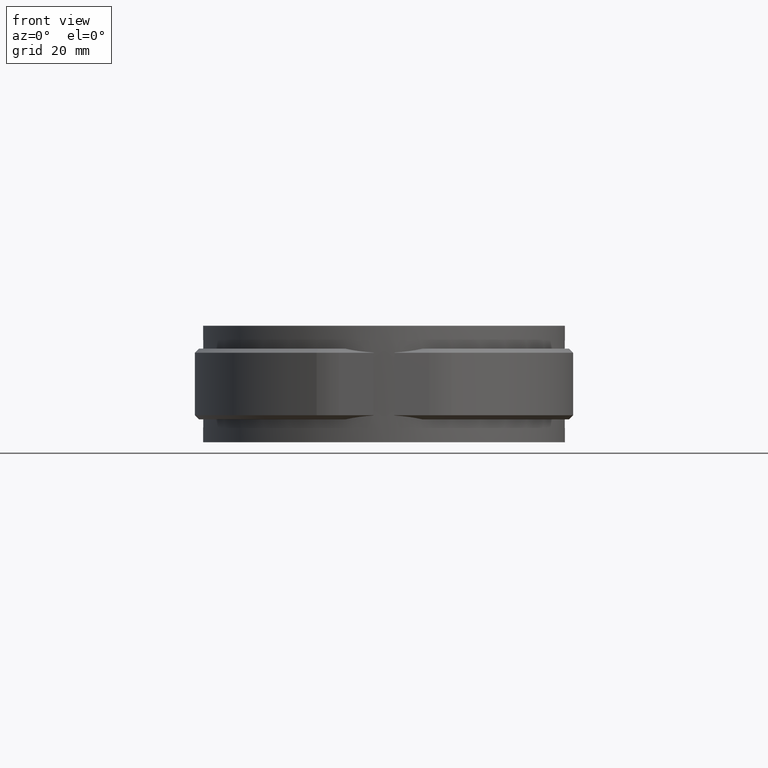
[diagram: clean part render]
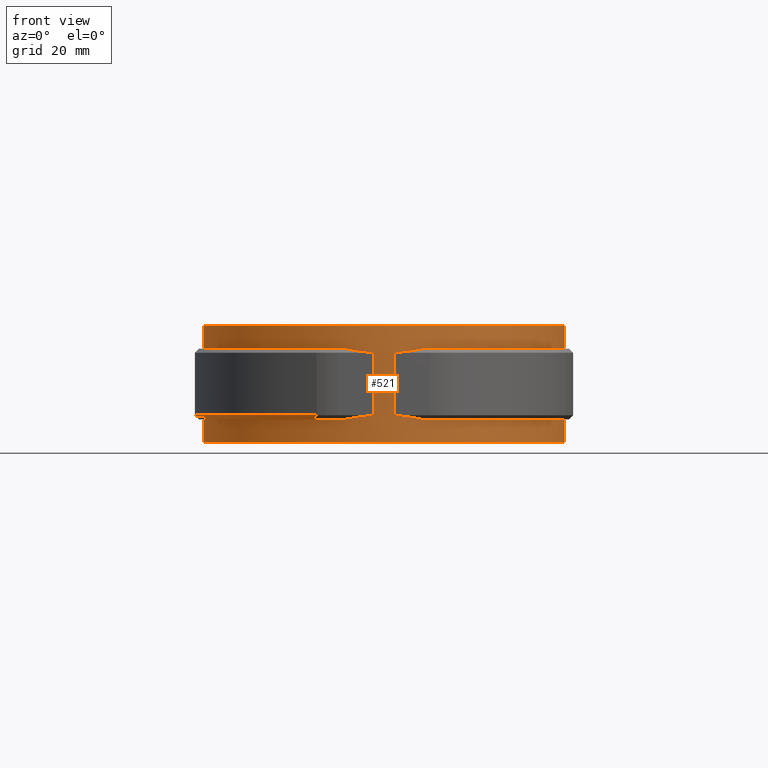
[diagram: same view with one face highlighted and labeled with its STEP entity id]
A machine part, front view. The second image highlights one B-rep face of the part: STEP entity #521.
In plain terms, the highlighted cylindrical surface (partial cylindrical patch) has radius 43.5 mm, axis along (0, 0, -1).
Its self-contained STEP definition (entity closure, byte-faithful):
#521 = ADVANCED_FACE( '', ( #950 ), #951, .T. );
#950 = FACE_OUTER_BOUND( '', #1980, .T. );
#951 = CYLINDRICAL_SURFACE( '', #1981, 43.5000000000000 );
#1980 = EDGE_LOOP( '', ( #4372, #4373, #4374, #4375, #4376, #4377, #4378, #4379, #4380, #4381, #4382, #4383, #4384, #4385, #4386, #4387 ) );
#1981 = AXIS2_PLACEMENT_3D( '', #4388, #4389, #4390 );
#4372 = ORIENTED_EDGE( '', *, *, #7445, .F. );
#4373 = ORIENTED_EDGE( '', *, *, #7451, .T. );
#4374 = ORIENTED_EDGE( '', *, *, #7452, .T. );
#4375 = ORIENTED_EDGE( '', *, *, #7453, .T. );
#4376 = ORIENTED_EDGE( '', *, *, #7454, .T. );
#4377 = ORIENTED_EDGE( '', *, *, #7436, .F. );
#4378 = ORIENTED_EDGE( '', *, *, #7455, .T. );
#4379 = ORIENTED_EDGE( '', *, *, #7456, .T. );
#4380 = ORIENTED_EDGE( '', *, *, #7457, .F. );
#4381 = ORIENTED_EDGE( '', *, *, #7458, .T. );
#4382 = ORIENTED_EDGE( '', *, *, #7459, .F. );
#4383 = ORIENTED_EDGE( '', *, *, #7430, .F. );
#4384 = ORIENTED_EDGE( '', *, *, #7460, .F. );
#4385 = ORIENTED_EDGE( '', *, *, #7461, .T. );
#4386 = ORIENTED_EDGE( '', *, *, #7462, .F. );
#4387 = ORIENTED_EDGE( '', *, *, #7449, .T. );
#4388 = CARTESIAN_POINT( '', ( 0.000000000000000, 0.000000000000000, -14.0000000000000 ) );
#4389 = DIRECTION( '', ( 0.000000000000000, 0.000000000000000, -1.00000000000000 ) );
#4390 = DIRECTION( '', ( -1.00000000000000, 6.07153216591882E-017, 0.000000000000000 ) );
#7430 = EDGE_CURVE( '', #8535, #8537, #8538, .T. );
#7436 = EDGE_CURVE( '', #8547, #8549, #8550, .T. );
#7445 = EDGE_CURVE( '', #8563, #8565, #8566, .F. );
#7449 = EDGE_CURVE( '', #8572, #8565, #8573, .F. );
#7451 = EDGE_CURVE( '', #8563, #8575, #8576, .T. );
#7452 = EDGE_CURVE( '', #8575, #8577, #8578, .T. );
#7453 = EDGE_CURVE( '', #8577, #8579, #8580, .T. );
#7454 = EDGE_CURVE( '', #8579, #8549, #8581, .T. );
#7455 = EDGE_CURVE( '', #8547, #8582, #8583, .T. );
#7456 = EDGE_CURVE( '', #8582, #8584, #8585, .T. );
#7457 = EDGE_CURVE( '', #8586, #8584, #8587, .T. );
#7458 = EDGE_CURVE( '', #8586, #8588, #8589, .F. );
#7459 = EDGE_CURVE( '', #8537, #8588, #8590, .T. );
#7460 = EDGE_CURVE( '', #8591, #8535, #8592, .T. );
#7461 = EDGE_CURVE( '', #8591, #8593, #8594, .T. );
#7462 = EDGE_CURVE( '', #8572, #8593, #8595, .T. );
#8535 = VERTEX_POINT( '', #11593 );
#8537 = VERTEX_POINT( '', #11596 );
#8538 = LINE( '', #11597, #11598 );
#8547 = VERTEX_POINT( '', #11615 );
#8549 = VERTEX_POINT( '', #11618 );
#8550 = LINE( '', #11619, #11620 );
#8563 = VERTEX_POINT( '', #11637 );
#8565 = VERTEX_POINT( '', #11640 );
#8566 = LINE( '', #11641, #11642 );
#8572 = VERTEX_POINT( '', #11651 );
#8573 = ELLIPSE( '', #11652, 61.5182899632296, 43.5000000000000 );
#8575 = VERTEX_POINT( '', #11655 );
#8576 = ELLIPSE( '', #11656, 61.5182899632297, 43.5000000000000 );
#8577 = VERTEX_POINT( '', #11657 );
#8578 = CIRCLE( '', #11658, 43.5000000000000 );
#8579 = VERTEX_POINT( '', #11659 );
#8580 = LINE( '', #11660, #11661 );
#8581 = CIRCLE( '', #11662, 43.5000000000000 );
#8582 = VERTEX_POINT( '', #11663 );
#8583 = CIRCLE( '', #11664, 43.5000000000000 );
#8584 = VERTEX_POINT( '', #11665 );
#8585 = ELLIPSE( '', #11666, 61.5182899632297, 43.5000000000000 );
#8586 = VERTEX_POINT( '', #11667 );
#8587 = LINE( '', #11668, #11669 );
#8588 = VERTEX_POINT( '', #11670 );
#8589 = ELLIPSE( '', #11671, 61.5182899632296, 43.5000000000000 );
#8590 = CIRCLE( '', #11672, 43.5000000000000 );
#8591 = VERTEX_POINT( '', #11673 );
#8592 = CIRCLE( '', #11674, 43.5000000000000 );
#8593 = VERTEX_POINT( '', #11675 );
#8594 = LINE( '', #11676, #11677 );
#8595 = CIRCLE( '', #11678, 43.5000000000000 );
#11593 = CARTESIAN_POINT( '', ( -6.00000000000000, 43.0842198490352, -14.0000000000000 ) );
#11596 = CARTESIAN_POINT( '', ( -6.00000000000000, 43.0842198490352, -8.50000000000000 ) );
#11597 = CARTESIAN_POINT( '', ( -6.00000000000000, 43.0842198490352, -14.0000000000000 ) );
#11598 = VECTOR( '', #14451, 1000.00000000000 );
#11615 = CARTESIAN_POINT( '', ( -6.00000000000000, 43.0842198490352, 8.50000000000000 ) );
#11618 = CARTESIAN_POINT( '', ( -6.00000000000000, 43.0842198490352, 14.0000000000000 ) );
#11619 = CARTESIAN_POINT( '', ( -6.00000000000000, 43.0842198490352, -14.0000000000000 ) );
#11620 = VECTOR( '', #14455, 1000.00000000000 );
#11637 = CARTESIAN_POINT( '', ( 2.50000000000000, -43.4281015012169, 7.57189849878307 ) );
#11640 = CARTESIAN_POINT( '', ( 2.50000000000000, -43.4281015012169, -7.57189849878307 ) );
#11641 = CARTESIAN_POINT( '', ( 2.50000000000000, -43.4281015012169, -14.0000000000000 ) );
#11642 = VECTOR( '', #14470, 1000.00000000000 );
#11651 = CARTESIAN_POINT( '', ( 9.27361849549569, -42.5000000000000, -8.50000000000000 ) );
#11652 = AXIS2_PLACEMENT_3D( '', #14474, #14475, #14476 );
#11655 = CARTESIAN_POINT( '', ( 9.27361849549570, -42.5000000000000, 8.50000000000000 ) );
#11656 = AXIS2_PLACEMENT_3D( '', #14478, #14479, #14480 );
#11657 = CARTESIAN_POINT( '', ( 6.00000000000000, 43.0842198490352, 8.50000000000000 ) );
#11658 = AXIS2_PLACEMENT_3D( '', #14481, #14482, #14483 );
#11659 = CARTESIAN_POINT( '', ( 6.00000000000000, 43.0842198490352, 14.0000000000000 ) );
#11660 = CARTESIAN_POINT( '', ( 6.00000000000000, 43.0842198490352, -14.0000000000000 ) );
#11661 = VECTOR( '', #14484, 1000.00000000000 );
#11662 = AXIS2_PLACEMENT_3D( '', #14485, #14486, #14487 );
#11663 = CARTESIAN_POINT( '', ( -9.27361849549570, -42.5000000000000, 8.50000000000000 ) );
#11664 = AXIS2_PLACEMENT_3D( '', #14488, #14489, #14490 );
#11665 = CARTESIAN_POINT( '', ( -2.50000000000000, -43.4281015012169, 7.57189849878307 ) );
#11666 = AXIS2_PLACEMENT_3D( '', #14491, #14492, #14493 );
#11667 = CARTESIAN_POINT( '', ( -2.50000000000000, -43.4281015012169, -7.57189849878307 ) );
#11668 = CARTESIAN_POINT( '', ( -2.50000000000000, -43.4281015012169, -14.0000000000000 ) );
#11669 = VECTOR( '', #14494, 1000.00000000000 );
#11670 = CARTESIAN_POINT( '', ( -9.27361849549569, -42.5000000000000, -8.50000000000000 ) );
#11671 = AXIS2_PLACEMENT_3D( '', #14495, #14496, #14497 );
#11672 = AXIS2_PLACEMENT_3D( '', #14498, #14499, #14500 );
#11673 = CARTESIAN_POINT( '', ( 6.00000000000000, 43.0842198490352, -14.0000000000000 ) );
#11674 = AXIS2_PLACEMENT_3D( '', #14501, #14502, #14503 );
#11675 = CARTESIAN_POINT( '', ( 6.00000000000000, 43.0842198490352, -8.50000000000000 ) );
#11676 = CARTESIAN_POINT( '', ( 6.00000000000000, 43.0842198490352, -14.0000000000000 ) );
#11677 = VECTOR( '', #14504, 1000.00000000000 );
#11678 = AXIS2_PLACEMENT_3D( '', #14505, #14506, #14507 );
#14451 = DIRECTION( '', ( 0.000000000000000, 0.000000000000000, 1.00000000000000 ) );
#14455 = DIRECTION( '', ( 0.000000000000000, 0.000000000000000, 1.00000000000000 ) );
#14470 = DIRECTION( '', ( 0.000000000000000, 0.000000000000000, 1.00000000000000 ) );
#14474 = CARTESIAN_POINT( '', ( 0.000000000000000, 0.000000000000000, -51.0000000000000 ) );
#14475 = DIRECTION( '', ( 0.000000000000000, 0.707106781186548, 0.707106781186548 ) );
#14476 = DIRECTION( '', ( 0.000000000000000, -0.707106781186547, 0.707106781186547 ) );
#14478 = CARTESIAN_POINT( '', ( 0.000000000000000, 0.000000000000000, 51.0000000000001 ) );
#14479 = DIRECTION( '', ( 0.000000000000000, -0.707106781186548, 0.707106781186547 ) );
#14480 = DIRECTION( '', ( 0.000000000000000, 0.707106781186547, 0.707106781186548 ) );
#14481 = CARTESIAN_POINT( '', ( 0.000000000000000, 0.000000000000000, 8.50000000000000 ) );
#14482 = DIRECTION( '', ( 0.000000000000000, 0.000000000000000, 1.00000000000000 ) );
#14483 = DIRECTION( '', ( 1.00000000000000, 0.000000000000000, 0.000000000000000 ) );
#14484 = DIRECTION( '', ( 0.000000000000000, 0.000000000000000, 1.00000000000000 ) );
#14485 = CARTESIAN_POINT( '', ( 0.000000000000000, 0.000000000000000, 14.0000000000000 ) );
#14486 = DIRECTION( '', ( 0.000000000000000, 0.000000000000000, -1.00000000000000 ) );
#14487 = DIRECTION( '', ( -1.00000000000000, 0.000000000000000, 0.000000000000000 ) );
#14488 = CARTESIAN_POINT( '', ( 0.000000000000000, 0.000000000000000, 8.50000000000000 ) );
#14489 = DIRECTION( '', ( 0.000000000000000, 0.000000000000000, 1.00000000000000 ) );
#14490 = DIRECTION( '', ( 1.00000000000000, 0.000000000000000, 0.000000000000000 ) );
#14491 = CARTESIAN_POINT( '', ( 0.000000000000000, 0.000000000000000, 51.0000000000001 ) );
#14492 = DIRECTION( '', ( 0.000000000000000, -0.707106781186548, 0.707106781186547 ) );
#14493 = DIRECTION( '', ( 0.000000000000000, 0.707106781186547, 0.707106781186548 ) );
#14494 = DIRECTION( '', ( 0.000000000000000, 0.000000000000000, 1.00000000000000 ) );
#14495 = CARTESIAN_POINT( '', ( 0.000000000000000, 0.000000000000000, -51.0000000000000 ) );
#14496 = DIRECTION( '', ( 0.000000000000000, 0.707106781186548, 0.707106781186548 ) );
#14497 = DIRECTION( '', ( 0.000000000000000, -0.707106781186547, 0.707106781186547 ) );
#14498 = CARTESIAN_POINT( '', ( 0.000000000000000, 0.000000000000000, -8.50000000000000 ) );
#14499 = DIRECTION( '', ( 0.000000000000000, 0.000000000000000, 1.00000000000000 ) );
#14500 = DIRECTION( '', ( 1.00000000000000, 0.000000000000000, 0.000000000000000 ) );
#14501 = CARTESIAN_POINT( '', ( 0.000000000000000, 0.000000000000000, -14.0000000000000 ) );
#14502 = DIRECTION( '', ( 0.000000000000000, 0.000000000000000, -1.00000000000000 ) );
#14503 = DIRECTION( '', ( -1.00000000000000, 0.000000000000000, 0.000000000000000 ) );
#14504 = DIRECTION( '', ( 0.000000000000000, 0.000000000000000, 1.00000000000000 ) );
#14505 = CARTESIAN_POINT( '', ( 0.000000000000000, 0.000000000000000, -8.50000000000000 ) );
#14506 = DIRECTION( '', ( 0.000000000000000, 0.000000000000000, 1.00000000000000 ) );
#14507 = DIRECTION( '', ( 1.00000000000000, 0.000000000000000, 0.000000000000000 ) );